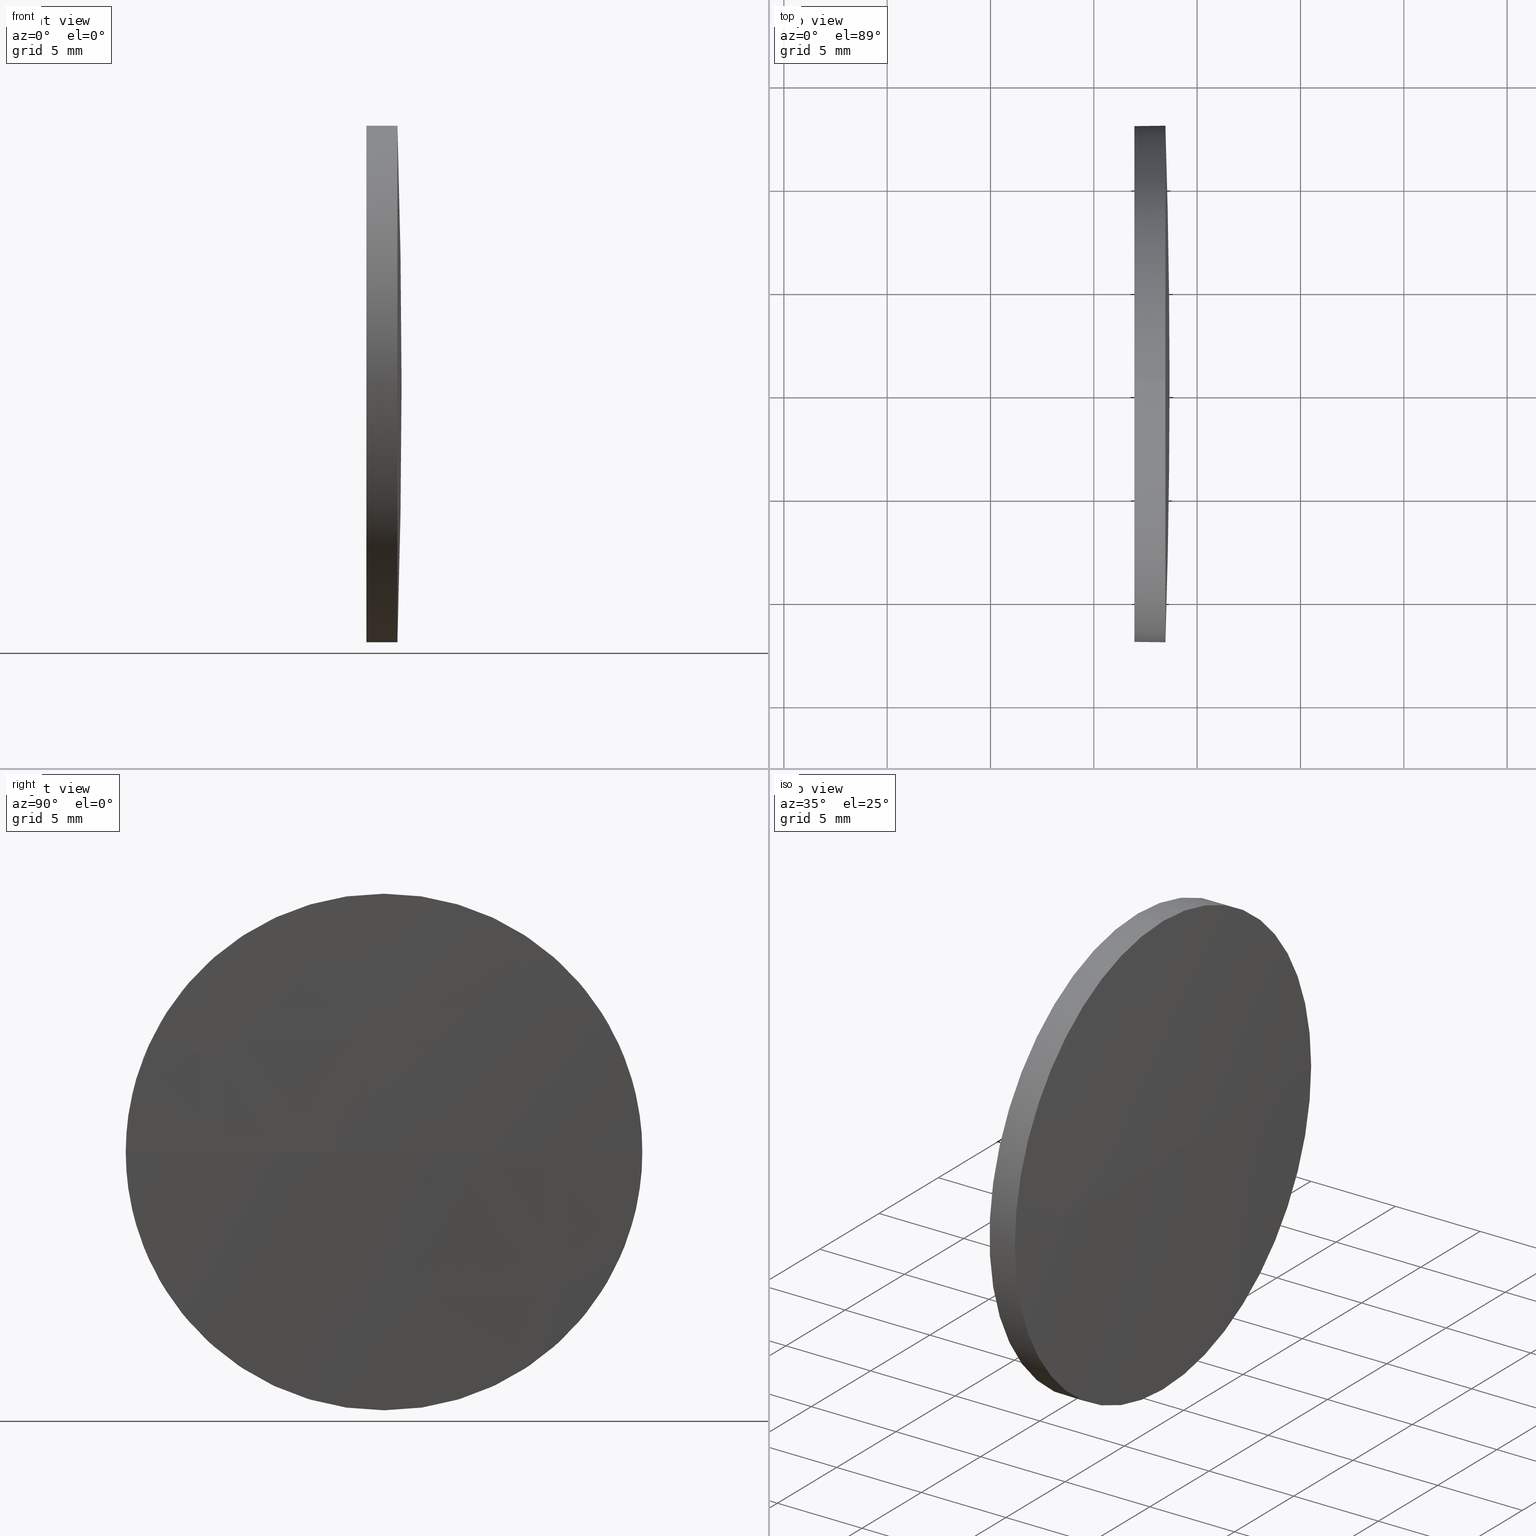
[diagram: canonical four-view strip — front | top / right | iso, engineering-drawing reading convention]
A machine part, canonical four-view strip (front | top / right | iso — engineering-drawing reading convention). The complete STEP part file that produces these views, byte-faithful:
ISO-10303-21;
HEADER;
FILE_DESCRIPTION (( 'STEP AP214' ),
    '1' );
FILE_NAME ('100139.STEP',
    '2019-05-15T05:17:20',
    ( '' ),
    ( '' ),
    'SwSTEP 2.0',
    'SolidWorks 2016',
    '' );
FILE_SCHEMA (( 'AUTOMOTIVE_DESIGN' ));
ENDSEC;

DATA;
#1 = DIRECTION ( 'NONE',  ( 0.0000000000000000000, 0.0000000000000000000, 1.000000000000000000 ) ) ;
#2 = VERTEX_POINT ( 'NONE', #161 ) ;
#3 = CARTESIAN_POINT ( 'NONE',  ( 468.4651575666903200, 120.4458645264297700, -12.50000000000001100 ) ) ;
#4 =( NAMED_UNIT ( * ) PLANE_ANGLE_UNIT ( ) SI_UNIT ( $, .RADIAN. ) );
#5 = APPLICATION_PROTOCOL_DEFINITION ( 'draft international standard', 'automotive_design', 1998, #89 ) ;
#6 = AXIS2_PLACEMENT_3D ( 'NONE', #62, #8, #90 ) ;
#7 = DIRECTION ( 'NONE',  ( -0.0000000000000000000, 0.0000000000000000000, -1.000000000000000000 ) ) ;
#8 = DIRECTION ( 'NONE',  ( -0.0000000000000000000, 0.0000000000000000000, -1.000000000000000000 ) ) ;
#9 = STYLED_ITEM ( 'NONE', ( #143 ), #66 ) ;
#10 = APPLICATION_CONTEXT ( 'automotive_design' ) ;
#11 = VECTOR ( 'NONE', #105, 1000.000000000000000 ) ;
#12 = FACE_OUTER_BOUND ( 'NONE', #173, .T. ) ;
#13 = ORIENTED_EDGE ( 'NONE', *, *, #106, .T. ) ;
#14 = AXIS2_PLACEMENT_3D ( 'NONE', #113, #126, #139 ) ;
#15 = EDGE_LOOP ( 'NONE', ( #98, #109, #171, #125 ) ) ;
#16 = PRESENTATION_LAYER_ASSIGNMENT (  '', '', ( #123 ) ) ;
#17 = CARTESIAN_POINT ( 'NONE',  ( 466.9651575666903200, 120.4458645264297700, 0.0000000000000000000 ) ) ;
#18 = DIRECTION ( 'NONE',  ( -1.000000000000000000, -0.0000000000000000000, -0.0000000000000000000 ) ) ;
#19 = EDGE_CURVE ( 'NONE', #29, #170, #83, .T. ) ;
#20 = SURFACE_STYLE_FILL_AREA ( #73 ) ;
#21 = ORIENTED_EDGE ( 'NONE', *, *, #47, .T. ) ;
#22 = DIRECTION ( 'NONE',  ( 0.0000000000000000000, 0.0000000000000000000, 1.000000000000000000 ) ) ;
#23 =( NAMED_UNIT ( * ) SI_UNIT ( $, .STERADIAN. ) SOLID_ANGLE_UNIT ( ) );
#24 =( NAMED_UNIT ( * ) PLANE_ANGLE_UNIT ( ) SI_UNIT ( $, .RADIAN. ) );
#25 = EDGE_CURVE ( 'NONE', #150, #36, #95, .T. ) ;
#26 = AXIS2_PLACEMENT_3D ( 'NONE', #117, #22, #153 ) ;
#27 = CARTESIAN_POINT ( 'NONE',  ( 77.94015756669587300, 120.4458645264289900, 0.0000000000000000000 ) ) ;
#28 = AXIS2_PLACEMENT_3D ( 'NONE', #183, #120, #103 ) ;
#29 = VERTEX_POINT ( 'NONE', #112 ) ;
#30 = VERTEX_POINT ( 'NONE', #3 ) ;
#31 = PRESENTATION_LAYER_ASSIGNMENT (  '', '', ( #9 ) ) ;
#32 = ORIENTED_EDGE ( 'NONE', *, *, #41, .F. ) ;
#33 = DIRECTION ( 'NONE',  ( -1.000000000000000000, -0.0000000000000000000, -0.0000000000000000000 ) ) ;
#34 = DIRECTION ( 'NONE',  ( 1.000000000000000000, 0.0000000000000000000, 0.0000000000000000000 ) ) ;
#35 = CIRCLE ( 'NONE', #111, 390.7249999999944500 ) ;
#36 = VERTEX_POINT ( 'NONE', #38 ) ;
#37 = DIRECTION ( 'NONE',  ( 0.0000000000000000000, 0.0000000000000000000, 1.000000000000000000 ) ) ;
#38 = CARTESIAN_POINT ( 'NONE',  ( 466.9651575666903200, 120.4458645264297700, 12.50000000000001100 ) ) ;
#39 = DIRECTION ( 'NONE',  ( -0.0000000000000000000, 0.0000000000000000000, 1.000000000000000000 ) ) ;
#40 = CARTESIAN_POINT ( 'NONE',  ( 464.5995416639293600, 120.4458645264297700, -12.50000000000001100 ) ) ;
#41 = EDGE_CURVE ( 'NONE', #170, #2, #86, .T. ) ;
#42 = PRODUCT_DEFINITION ( 'δ֪', '', #82, #149 ) ;
#43 = DIRECTION ( 'NONE',  ( -1.000000000000000000, -0.0000000000000000000, -0.0000000000000000000 ) ) ;
#44 = ADVANCED_FACE ( 'NONE', ( #162 ), #160, .F. ) ;
#45 = AXIS2_PLACEMENT_3D ( 'NONE', #128, #39, #132 ) ;
#46 = SURFACE_SIDE_STYLE ('',( #159 ) ) ;
#47 = EDGE_CURVE ( 'NONE', #170, #36, #110, .T. ) ;
#48 = AXIS2_PLACEMENT_3D ( 'NONE', #54, #127, #37 ) ;
#49 = EDGE_CURVE ( 'NONE', #36, #150, #97, .T. ) ;
#50 = FACE_OUTER_BOUND ( 'NONE', #15, .T. ) ;
#51 = AXIS2_PLACEMENT_3D ( 'NONE', #17, #34, #59 ) ;
#52 = EDGE_CURVE ( 'NONE', #108, #29, #35, .T. ) ;
#53 = PRODUCT_DEFINITION_SHAPE ( 'NONE', 'NONE',  #42 ) ;
#54 = CARTESIAN_POINT ( 'NONE',  ( 466.9651575666903200, 120.4458645264297700, 0.0000000000000000000 ) ) ;
#55 = DIRECTION ( 'NONE',  ( -1.000000000000000000, -0.0000000000000000000, -0.0000000000000000000 ) ) ;
#56 = ORIENTED_EDGE ( 'NONE', *, *, #87, .T. ) ;
#57 = CARTESIAN_POINT ( 'NONE',  ( 464.5995416639293600, 120.4458645264297700, 12.50000000000001100 ) ) ;
#58 = FILL_AREA_STYLE_COLOUR ( '', #185 ) ;
#59 = DIRECTION ( 'NONE',  ( 0.0000000000000000000, 0.0000000000000000000, -1.000000000000000000 ) ) ;
#60 = PRESENTATION_STYLE_ASSIGNMENT (( #144 ) ) ;
#61 =( GEOMETRIC_REPRESENTATION_CONTEXT ( 3 ) GLOBAL_UNCERTAINTY_ASSIGNED_CONTEXT ( ( #172 ) ) GLOBAL_UNIT_ASSIGNED_CONTEXT ( ( #131, #24, #165 ) ) REPRESENTATION_CONTEXT ( 'NONE', 'WORKASPACE' ) );
#62 = CARTESIAN_POINT ( 'NONE',  ( 77.94015756669587300, 120.4458645264289900, 0.0000000000000000000 ) ) ;
#63 = FILL_AREA_STYLE ('',( #133 ) ) ;
#64 = CARTESIAN_POINT ( 'NONE',  ( 464.5995416639293600, 120.4458645264297700, 0.0000000000000000000 ) ) ;
#65 = CIRCLE ( 'NONE', #130, 12.50000000000001100 ) ;
#66 = MANIFOLD_SOLID_BREP ( '��ת1', #71 ) ;
#67 = MECHANICAL_DESIGN_GEOMETRIC_PRESENTATION_REPRESENTATION (  '', ( #9 ), #61 ) ;
#68 = ORIENTED_EDGE ( 'NONE', *, *, #25, .T. ) ;
#69 = AXIS2_PLACEMENT_3D ( 'NONE', #104, #43, #180 ) ;
#70 = SHAPE_DEFINITION_REPRESENTATION ( #53, #178 ) ;
#71 = CLOSED_SHELL ( 'NONE', ( #138, #151, #167, #114, #44 ) ) ;
#72 = DIRECTION ( 'NONE',  ( 0.0000000000000000000, 1.224646799147353200E-016, -1.000000000000000000 ) ) ;
#73 = FILL_AREA_STYLE ('',( #58 ) ) ;
#74 = SURFACE_SIDE_STYLE ('',( #20 ) ) ;
#75 = CIRCLE ( 'NONE', #45, 390.7249999999944500 ) ;
#76 = DIRECTION ( 'NONE',  ( 0.0000000000000000000, 1.000000000000000000, 1.224646799147353200E-016 ) ) ;
#77 = APPLICATION_PROTOCOL_DEFINITION ( 'draft international standard', 'automotive_design', 1998, #10 ) ;
#78 = CARTESIAN_POINT ( 'NONE',  ( 468.6651575666903100, 120.4458645264290200, 0.0000000000000000000 ) ) ;
#79 = DIRECTION ( 'NONE',  ( 0.0000000000000000000, 0.0000000000000000000, 1.000000000000000000 ) ) ;
#80 = FACE_OUTER_BOUND ( 'NONE', #169, .T. ) ;
#81 = EDGE_CURVE ( 'NONE', #30, #150, #115, .T. ) ;
#82 = PRODUCT_DEFINITION_FORMATION_WITH_SPECIFIED_SOURCE ( '�κ�', '', #135, .NOT_KNOWN. ) ;
#83 = CIRCLE ( 'NONE', #96, 12.50000000000001100 ) ;
#84 = ORIENTED_EDGE ( 'NONE', *, *, #81, .F. ) ;
#85 = UNCERTAINTY_MEASURE_WITH_UNIT (LENGTH_MEASURE( 1.000000000000000100E-005 ), #101, 'distance_accuracy_value', 'NONE');
#86 = CIRCLE ( 'NONE', #14, 12.50000000000001100 ) ;
#87 = EDGE_CURVE ( 'NONE', #108, #2, #75, .T. ) ;
#88 =( GEOMETRIC_REPRESENTATION_CONTEXT ( 3 ) GLOBAL_UNCERTAINTY_ASSIGNED_CONTEXT ( ( #124 ) ) GLOBAL_UNIT_ASSIGNED_CONTEXT ( ( #142, #102, #177 ) ) REPRESENTATION_CONTEXT ( 'NONE', 'WORKASPACE' ) );
#89 = APPLICATION_CONTEXT ( 'automotive_design' ) ;
#90 = DIRECTION ( 'NONE',  ( 0.0000000000000000000, 1.000000000000000000, 0.0000000000000000000 ) ) ;
#91 = ORIENTED_EDGE ( 'NONE', *, *, #81, .T. ) ;
#92 = PRODUCT_RELATED_PRODUCT_CATEGORY ( 'part', '', ( #135 ) ) ;
#93 = ORIENTED_EDGE ( 'NONE', *, *, #19, .F. ) ;
#94 = MECHANICAL_DESIGN_GEOMETRIC_PRESENTATION_REPRESENTATION (  '', ( #123 ), #182 ) ;
#95 = CIRCLE ( 'NONE', #156, 12.50000000000001100 ) ;
#96 = AXIS2_PLACEMENT_3D ( 'NONE', #141, #18, #175 ) ;
#97 = CIRCLE ( 'NONE', #48, 12.50000000000001100 ) ;
#98 = ORIENTED_EDGE ( 'NONE', *, *, #87, .F. ) ;
#99 = CARTESIAN_POINT ( 'NONE',  ( 77.94015756669587300, 120.4458645264289900, 0.0000000000000000000 ) ) ;
#100 = FACE_OUTER_BOUND ( 'NONE', #184, .T. ) ;
#101 =( LENGTH_UNIT ( ) NAMED_UNIT ( * ) SI_UNIT ( .MILLI., .METRE. ) );
#102 =( NAMED_UNIT ( * ) PLANE_ANGLE_UNIT ( ) SI_UNIT ( $, .RADIAN. ) );
#103 = DIRECTION ( 'NONE',  ( 0.0000000000000000000, 0.0000000000000000000, 1.000000000000000000 ) ) ;
#104 = CARTESIAN_POINT ( 'NONE',  ( 464.5995416639293600, 120.4458645264297700, 0.0000000000000000000 ) ) ;
#105 = DIRECTION ( 'NONE',  ( -1.000000000000000000, -0.0000000000000000000, -0.0000000000000000000 ) ) ;
#106 = EDGE_CURVE ( 'NONE', #2, #30, #147, .T. ) ;
#107 = COLOUR_RGB ( '',1.000000000000000000, 1.000000000000000000, 1.000000000000000000 ) ;
#108 = VERTEX_POINT ( 'NONE', #78 ) ;
#109 = ORIENTED_EDGE ( 'NONE', *, *, #52, .T. ) ;
#110 = LINE ( 'NONE', #57, #155 ) ;
#111 = AXIS2_PLACEMENT_3D ( 'NONE', #99, #72, #76 ) ;
#112 = CARTESIAN_POINT ( 'NONE',  ( 468.4651575666903800, 107.9458645264300000, -1.530808498934068300E-015 ) ) ;
#113 = CARTESIAN_POINT ( 'NONE',  ( 468.4651575666903200, 120.4458645264297700, 0.0000000000000000000 ) ) ;
#114 = ADVANCED_FACE ( 'NONE', ( #12 ), #168, .T. ) ;
#115 = LINE ( 'NONE', #40, #11 ) ;
#116 = CARTESIAN_POINT ( 'NONE',  ( 466.9651575666903200, 120.4458645264297700, 0.0000000000000000000 ) ) ;
#117 = CARTESIAN_POINT ( 'NONE',  ( 0.0000000000000000000, 0.0000000000000000000, 0.0000000000000000000 ) ) ;
#118 = DIRECTION ( 'NONE',  ( -1.000000000000000000, -0.0000000000000000000, -0.0000000000000000000 ) ) ;
#119 = DIRECTION ( 'NONE',  ( 0.0000000000000000000, 1.000000000000000000, 0.0000000000000000000 ) ) ;
#120 = DIRECTION ( 'NONE',  ( -1.000000000000000000, -0.0000000000000000000, -0.0000000000000000000 ) ) ;
#121 = ORIENTED_EDGE ( 'NONE', *, *, #49, .T. ) ;
#122 = ORIENTED_EDGE ( 'NONE', *, *, #52, .F. ) ;
#123 = STYLED_ITEM ( 'NONE', ( #60 ), #178 ) ;
#124 = UNCERTAINTY_MEASURE_WITH_UNIT (LENGTH_MEASURE( 1.000000000000000100E-005 ), #142, 'distance_accuracy_value', 'NONE');
#125 = ORIENTED_EDGE ( 'NONE', *, *, #106, .F. ) ;
#126 = DIRECTION ( 'NONE',  ( -1.000000000000000000, -0.0000000000000000000, -0.0000000000000000000 ) ) ;
#127 = DIRECTION ( 'NONE',  ( -1.000000000000000000, -0.0000000000000000000, -0.0000000000000000000 ) ) ;
#128 = CARTESIAN_POINT ( 'NONE',  ( 77.94015756669587300, 120.4458645264289900, 0.0000000000000000000 ) ) ;
#129 = ORIENTED_EDGE ( 'NONE', *, *, #25, .F. ) ;
#130 = AXIS2_PLACEMENT_3D ( 'NONE', #154, #134, #79 ) ;
#131 =( LENGTH_UNIT ( ) NAMED_UNIT ( * ) SI_UNIT ( .MILLI., .METRE. ) );
#132 = DIRECTION ( 'NONE',  ( 1.000000000000000000, 0.0000000000000000000, 0.0000000000000000000 ) ) ;
#133 = FILL_AREA_STYLE_COLOUR ( '', #107 ) ;
#134 = DIRECTION ( 'NONE',  ( -1.000000000000000000, -0.0000000000000000000, -0.0000000000000000000 ) ) ;
#135 = PRODUCT ( '100139', '100139', '', ( #163 ) ) ;
#136 = ORIENTED_EDGE ( 'NONE', *, *, #47, .F. ) ;
#137 = CYLINDRICAL_SURFACE ( 'NONE', #69, 12.50000000000001100 ) ;
#138 = ADVANCED_FACE ( 'NONE', ( #80 ), #137, .T. ) ;
#139 = DIRECTION ( 'NONE',  ( 0.0000000000000000000, 0.0000000000000000000, 1.000000000000000000 ) ) ;
#140 = ORIENTED_EDGE ( 'NONE', *, *, #19, .T. ) ;
#141 = CARTESIAN_POINT ( 'NONE',  ( 468.4651575666903200, 120.4458645264297700, 0.0000000000000000000 ) ) ;
#142 =( LENGTH_UNIT ( ) NAMED_UNIT ( * ) SI_UNIT ( .MILLI., .METRE. ) );
#143 = PRESENTATION_STYLE_ASSIGNMENT (( #152 ) ) ;
#144 = SURFACE_STYLE_USAGE ( .BOTH. , #46 ) ;
#145 = SPHERICAL_SURFACE ( 'NONE', #146, 390.7249999999944500 ) ;
#146 = AXIS2_PLACEMENT_3D ( 'NONE', #27, #7, #119 ) ;
#147 = CIRCLE ( 'NONE', #28, 12.50000000000001100 ) ;
#148 = ORIENTED_EDGE ( 'NONE', *, *, #41, .T. ) ;
#149 = PRODUCT_DEFINITION_CONTEXT ( 'detailed design', #89, 'design' ) ;
#150 = VERTEX_POINT ( 'NONE', #166 ) ;
#151 = ADVANCED_FACE ( 'NONE', ( #50 ), #145, .T. ) ;
#152 = SURFACE_STYLE_USAGE ( .BOTH. , #74 ) ;
#153 = DIRECTION ( 'NONE',  ( 1.000000000000000000, 0.0000000000000000000, 0.0000000000000000000 ) ) ;
#154 = CARTESIAN_POINT ( 'NONE',  ( 468.4651575666903200, 120.4458645264297700, 0.0000000000000000000 ) ) ;
#155 = VECTOR ( 'NONE', #55, 1000.000000000000000 ) ;
#156 = AXIS2_PLACEMENT_3D ( 'NONE', #116, #33, #1 ) ;
#157 = ORIENTED_EDGE ( 'NONE', *, *, #49, .F. ) ;
#158 = SPHERICAL_SURFACE ( 'NONE', #6, 390.7249999999944500 ) ;
#159 = SURFACE_STYLE_FILL_AREA ( #63 ) ;
#160 = PLANE ( 'NONE',  #51 ) ;
#161 = CARTESIAN_POINT ( 'NONE',  ( 468.4651575666903800, 132.9458645264287500, 0.0000000000000000000 ) ) ;
#162 = FACE_OUTER_BOUND ( 'NONE', #176, .T. ) ;
#163 = PRODUCT_CONTEXT ( 'NONE', #10, 'mechanical' ) ;
#164 = DIRECTION ( 'NONE',  ( 0.0000000000000000000, 0.0000000000000000000, 1.000000000000000000 ) ) ;
#165 =( NAMED_UNIT ( * ) SI_UNIT ( $, .STERADIAN. ) SOLID_ANGLE_UNIT ( ) );
#166 = CARTESIAN_POINT ( 'NONE',  ( 466.9651575666903200, 120.4458645264297700, -12.50000000000001100 ) ) ;
#167 = ADVANCED_FACE ( 'NONE', ( #100 ), #158, .T. ) ;
#168 = CYLINDRICAL_SURFACE ( 'NONE', #179, 12.50000000000001100 ) ;
#169 = EDGE_LOOP ( 'NONE', ( #13, #91, #157, #136, #148 ) ) ;
#170 = VERTEX_POINT ( 'NONE', #181 ) ;
#171 = ORIENTED_EDGE ( 'NONE', *, *, #174, .F. ) ;
#172 = UNCERTAINTY_MEASURE_WITH_UNIT (LENGTH_MEASURE( 1.000000000000000100E-005 ), #131, 'distance_accuracy_value', 'NONE');
#173 = EDGE_LOOP ( 'NONE', ( #84, #186, #140, #21, #129 ) ) ;
#174 = EDGE_CURVE ( 'NONE', #30, #29, #65, .T. ) ;
#175 = DIRECTION ( 'NONE',  ( 0.0000000000000000000, 0.0000000000000000000, 1.000000000000000000 ) ) ;
#176 = EDGE_LOOP ( 'NONE', ( #121, #68 ) ) ;
#177 =( NAMED_UNIT ( * ) SI_UNIT ( $, .STERADIAN. ) SOLID_ANGLE_UNIT ( ) );
#178 = ADVANCED_BREP_SHAPE_REPRESENTATION ( '100139', ( #66, #26 ), #88 ) ;
#179 = AXIS2_PLACEMENT_3D ( 'NONE', #64, #118, #164 ) ;
#180 = DIRECTION ( 'NONE',  ( 0.0000000000000000000, 0.0000000000000000000, 1.000000000000000000 ) ) ;
#181 = CARTESIAN_POINT ( 'NONE',  ( 468.4651575666903200, 120.4458645264297700, 12.50000000000001100 ) ) ;
#182 =( GEOMETRIC_REPRESENTATION_CONTEXT ( 3 ) GLOBAL_UNCERTAINTY_ASSIGNED_CONTEXT ( ( #85 ) ) GLOBAL_UNIT_ASSIGNED_CONTEXT ( ( #101, #4, #23 ) ) REPRESENTATION_CONTEXT ( 'NONE', 'WORKASPACE' ) );
#183 = CARTESIAN_POINT ( 'NONE',  ( 468.4651575666903200, 120.4458645264297700, 0.0000000000000000000 ) ) ;
#184 = EDGE_LOOP ( 'NONE', ( #122, #56, #32, #93 ) ) ;
#185 = COLOUR_RGB ( '',1.000000000000000000, 1.000000000000000000, 1.000000000000000000 ) ;
#186 = ORIENTED_EDGE ( 'NONE', *, *, #174, .T. ) ;
ENDSEC;
END-ISO-10303-21;
